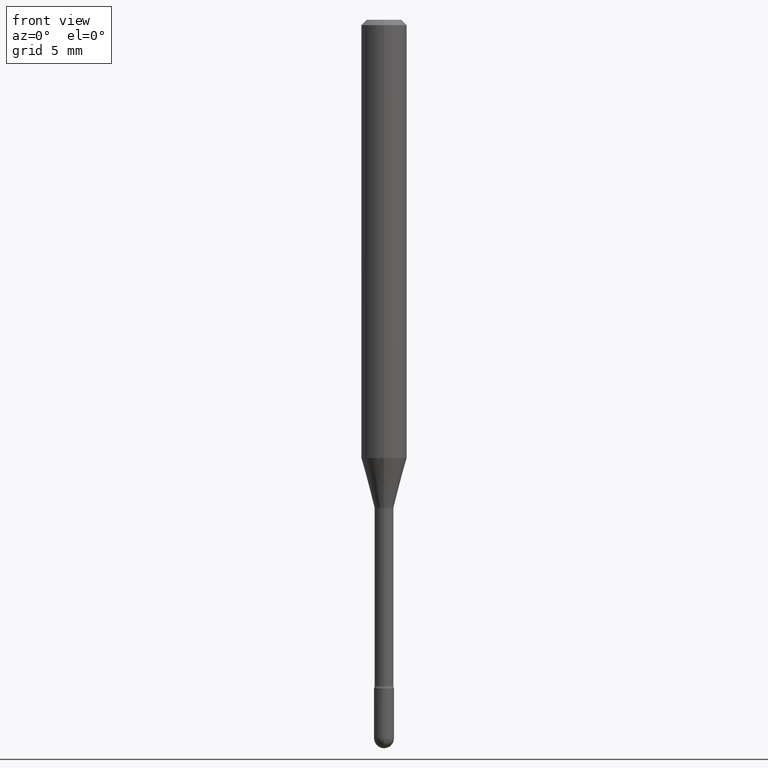
[diagram: clean part render]
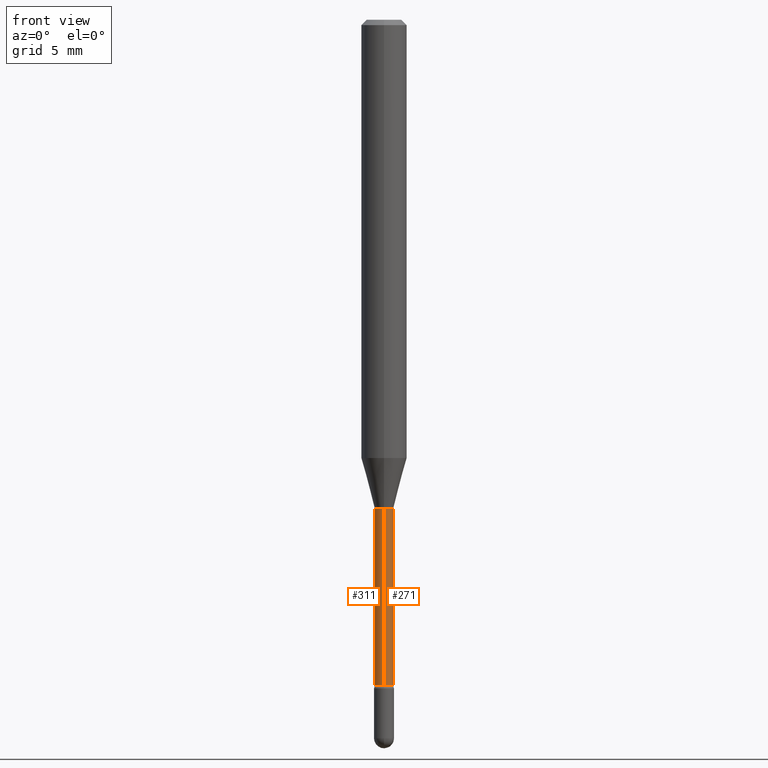
[diagram: same view with one multi-face feature highlighted, each face labeled with its STEP entity id]
A machine part, front view. The highlighted faces form ONE feature: a constant-radius fillet chain: 2 tangent blend faces with common blend radius 0.6566 mm. The faces share edges in the B-rep.
Their STEP definitions:
[1] entity #271 (Cylinder):
#5 = ORIENTED_EDGE ( 'NONE', *, *, #331, .T. ) ;
#6 = CARTESIAN_POINT ( 'NONE',  ( 3.281700167641022565E-29, -4.685562004235343704E-15, -1.341974787463811047 ) ) ;
#10 = FACE_OUTER_BOUND ( 'NONE', #328, .T. ) ;
#37 = AXIS2_PLACEMENT_3D ( 'NONE', #527, #218, #216 ) ;
#45 = VERTEX_POINT ( 'NONE', #402 ) ;
#64 = LINE ( 'NONE', #205, #95 ) ;
#85 = VERTEX_POINT ( 'NONE', #405 ) ;
#95 = VECTOR ( 'NONE', #515, 39.37007874015748143 ) ;
#135 = VERTEX_POINT ( 'NONE', #457 ) ;
#151 = CARTESIAN_POINT ( 'NONE',  ( 1.836752971940308241E-16, 0.02584999999999531423, -1.341974787463811047 ) ) ;
#178 = DIRECTION ( 'NONE',  ( -2.445426097641585314E-29, 3.491542499908330296E-15, 1.000000000000000000 ) ) ;
#205 = CARTESIAN_POINT ( 'NONE',  ( 1.836752971939861795E-16, 0.02585000000000004308, 3.878170252686155711E-16 ) ) ;
#214 = ORIENTED_EDGE ( 'NONE', *, *, #467, .F. ) ;
#215 = VERTEX_POINT ( 'NONE', #151 ) ;
#216 = DIRECTION ( 'NONE',  ( -6.982962677686265922E-15, -1.000000000000000000, 0.000000000000000000 ) ) ;
#218 = DIRECTION ( 'NONE',  ( -2.445426097641585314E-29, 3.491542499908330296E-15, 1.000000000000000000 ) ) ;
#225 = VECTOR ( 'NONE', #261, 39.37007874015748143 ) ;
#226 = DIRECTION ( 'NONE',  ( -6.982962677686266711E-15, -1.000000000000000000, 0.000000000000000000 ) ) ;
#261 = DIRECTION ( 'NONE',  ( -2.445426097641585595E-29, 3.491542499908329902E-15, 1.000000000000000000 ) ) ;
#267 = AXIS2_PLACEMENT_3D ( 'NONE', #6, #178, #226 ) ;
#271 = ADVANCED_FACE ( 'NONE', ( #10 ), #478, .T. ) ;
#328 = EDGE_LOOP ( 'NONE', ( #499, #5, #380, #214 ) ) ;
#331 = EDGE_CURVE ( 'NONE', #45, #215, #64, .T. ) ;
#360 = AXIS2_PLACEMENT_3D ( 'NONE', #486, #471, #393 ) ;
#375 = CIRCLE ( 'NONE', #37, 0.02585000000000008819 ) ;
#380 = ORIENTED_EDGE ( 'NONE', *, *, #543, .F. ) ;
#393 = DIRECTION ( 'NONE',  ( -6.982962677686265133E-15, -1.000000000000000000, 3.491542499908331479E-15 ) ) ;
#402 = CARTESIAN_POINT ( 'NONE',  ( 1.895372747640517446E-16, 0.02584999999999370787, -1.828160592130893436 ) ) ;
#405 = CARTESIAN_POINT ( 'NONE',  ( -1.805095852181571408E-16, -0.02585000000000468173, -1.341974787463811047 ) ) ;
#424 = CARTESIAN_POINT ( 'NONE',  ( -1.805095852181902483E-16, -0.02585000000000004308, 5.683297725138766046E-16 ) ) ;
#457 = CARTESIAN_POINT ( 'NONE',  ( -1.805095852181458995E-16, -0.02585000000000647197, -1.828160592130893436 ) ) ;
#467 = EDGE_CURVE ( 'NONE', #135, #85, #518, .T. ) ;
#471 = DIRECTION ( 'NONE',  ( -2.445426097641585314E-29, 3.491542499908330296E-15, 1.000000000000000000 ) ) ;
#475 = EDGE_CURVE ( 'NONE', #135, #45, #375, .T. ) ;
#478 = CYLINDRICAL_SURFACE ( 'NONE', #360, 0.02585000000000004308 ) ;
#486 = CARTESIAN_POINT ( 'NONE',  ( -1.169113584055446105E-44, 1.669184350826100908E-30, 4.780733988912460139E-16 ) ) ;
#499 = ORIENTED_EDGE ( 'NONE', *, *, #475, .T. ) ;
#515 = DIRECTION ( 'NONE',  ( -2.445426097641585595E-29, 3.491542499908329902E-15, 1.000000000000000000 ) ) ;
#518 = LINE ( 'NONE', #424, #225 ) ;
#524 = CIRCLE ( 'NONE', #267, 0.02584999999999999451 ) ;
#527 = CARTESIAN_POINT ( 'NONE',  ( 4.470631622676780781E-29, -6.383100404082593275E-15, -1.828160592130893436 ) ) ;
#543 = EDGE_CURVE ( 'NONE', #85, #215, #524, .T. ) ;
[2] entity #311 (Cylinder):
#3 = AXIS2_PLACEMENT_3D ( 'NONE', #453, #230, #187 ) ;
#25 = FACE_OUTER_BOUND ( 'NONE', #294, .T. ) ;
#45 = VERTEX_POINT ( 'NONE', #402 ) ;
#48 = ORIENTED_EDGE ( 'NONE', *, *, #52, .F. ) ;
#52 = EDGE_CURVE ( 'NONE', #215, #85, #513, .T. ) ;
#56 = DIRECTION ( 'NONE',  ( -6.982962677686265922E-15, -1.000000000000000000, 0.000000000000000000 ) ) ;
#64 = LINE ( 'NONE', #205, #95 ) ;
#65 = ORIENTED_EDGE ( 'NONE', *, *, #331, .F. ) ;
#85 = VERTEX_POINT ( 'NONE', #405 ) ;
#95 = VECTOR ( 'NONE', #515, 39.37007874015748143 ) ;
#135 = VERTEX_POINT ( 'NONE', #457 ) ;
#151 = CARTESIAN_POINT ( 'NONE',  ( 1.836752971940308241E-16, 0.02584999999999531423, -1.341974787463811047 ) ) ;
#184 = CARTESIAN_POINT ( 'NONE',  ( 3.281700167641022565E-29, -4.685562004235343704E-15, -1.341974787463811047 ) ) ;
#187 = DIRECTION ( 'NONE',  ( -6.982962677686265133E-15, -1.000000000000000000, 3.491542499908331479E-15 ) ) ;
#205 = CARTESIAN_POINT ( 'NONE',  ( 1.836752971939861795E-16, 0.02585000000000004308, 3.878170252686155711E-16 ) ) ;
#206 = EDGE_CURVE ( 'NONE', #45, #135, #289, .T. ) ;
#209 = AXIS2_PLACEMENT_3D ( 'NONE', #319, #504, #56 ) ;
#215 = VERTEX_POINT ( 'NONE', #151 ) ;
#225 = VECTOR ( 'NONE', #261, 39.37007874015748143 ) ;
#230 = DIRECTION ( 'NONE',  ( -2.445426097641585314E-29, 3.491542499908330296E-15, 1.000000000000000000 ) ) ;
#261 = DIRECTION ( 'NONE',  ( -2.445426097641585595E-29, 3.491542499908329902E-15, 1.000000000000000000 ) ) ;
#274 = DIRECTION ( 'NONE',  ( -6.982962677686266711E-15, -1.000000000000000000, 0.000000000000000000 ) ) ;
#289 = CIRCLE ( 'NONE', #209, 0.02585000000000008819 ) ;
#294 = EDGE_LOOP ( 'NONE', ( #65, #295, #365, #48 ) ) ;
#295 = ORIENTED_EDGE ( 'NONE', *, *, #206, .T. ) ;
#311 = ADVANCED_FACE ( 'NONE', ( #25 ), #497, .T. ) ;
#319 = CARTESIAN_POINT ( 'NONE',  ( 4.470631622676780781E-29, -6.383100404082593275E-15, -1.828160592130893436 ) ) ;
#331 = EDGE_CURVE ( 'NONE', #45, #215, #64, .T. ) ;
#365 = ORIENTED_EDGE ( 'NONE', *, *, #467, .T. ) ;
#402 = CARTESIAN_POINT ( 'NONE',  ( 1.895372747640517446E-16, 0.02584999999999370787, -1.828160592130893436 ) ) ;
#405 = CARTESIAN_POINT ( 'NONE',  ( -1.805095852181571408E-16, -0.02585000000000468173, -1.341974787463811047 ) ) ;
#408 = DIRECTION ( 'NONE',  ( -2.445426097641585314E-29, 3.491542499908330296E-15, 1.000000000000000000 ) ) ;
#419 = AXIS2_PLACEMENT_3D ( 'NONE', #184, #408, #274 ) ;
#424 = CARTESIAN_POINT ( 'NONE',  ( -1.805095852181902483E-16, -0.02585000000000004308, 5.683297725138766046E-16 ) ) ;
#453 = CARTESIAN_POINT ( 'NONE',  ( -1.169113584055446105E-44, 1.669184350826100908E-30, 4.780733988912460139E-16 ) ) ;
#457 = CARTESIAN_POINT ( 'NONE',  ( -1.805095852181458995E-16, -0.02585000000000647197, -1.828160592130893436 ) ) ;
#467 = EDGE_CURVE ( 'NONE', #135, #85, #518, .T. ) ;
#497 = CYLINDRICAL_SURFACE ( 'NONE', #3, 0.02585000000000004308 ) ;
#504 = DIRECTION ( 'NONE',  ( -2.445426097641585314E-29, 3.491542499908330296E-15, 1.000000000000000000 ) ) ;
#513 = CIRCLE ( 'NONE', #419, 0.02584999999999999451 ) ;
#515 = DIRECTION ( 'NONE',  ( -2.445426097641585595E-29, 3.491542499908329902E-15, 1.000000000000000000 ) ) ;
#518 = LINE ( 'NONE', #424, #225 ) ;